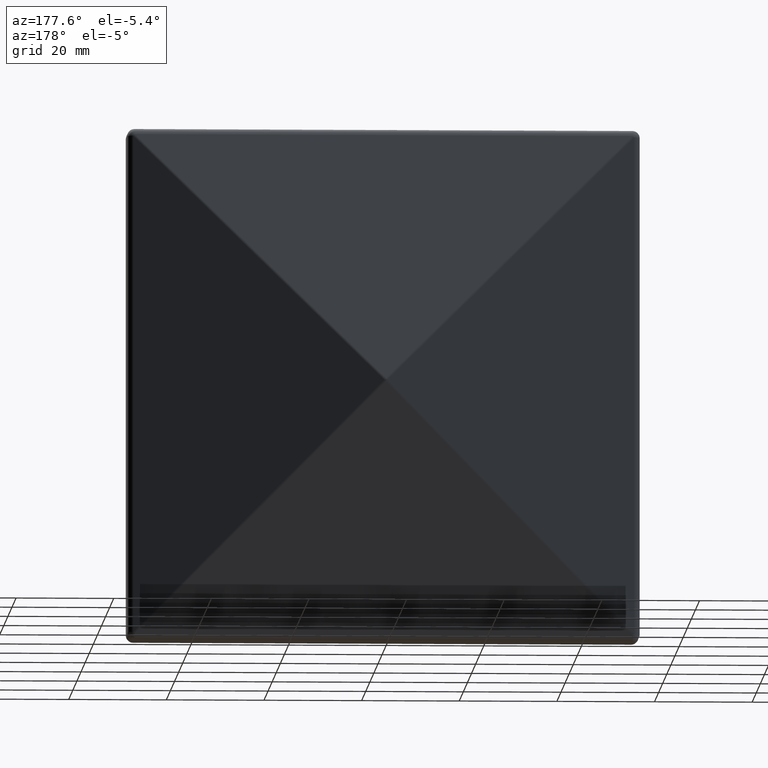
[diagram: clean part render]
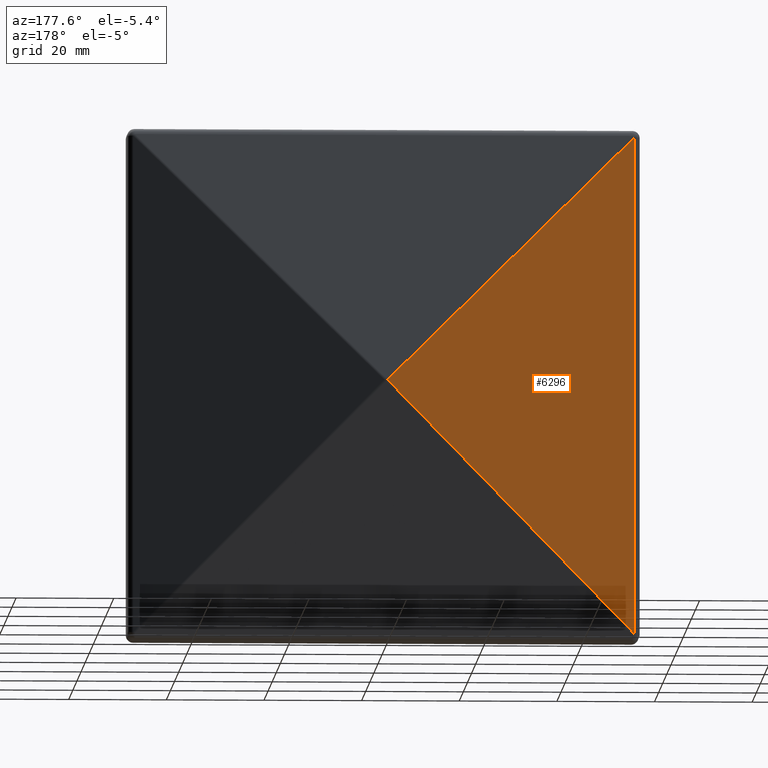
[diagram: same view with one face highlighted and labeled with its STEP entity id]
A machine part, auxiliary view. The second image highlights one B-rep face of the part: STEP entity #6296.
In plain terms, the highlighted planar face has unit normal (-0.2108, 0.9775, 0).
Its self-contained STEP definition (entity closure, byte-faithful):
#873 = ORIENTED_EDGE ( 'NONE', *, *, #8316, .T. ) ;
#1115 = VECTOR ( 'NONE', #1440, 1000.000000000000000 ) ;
#1440 = DIRECTION ( 'NONE',  ( -0.0000000000000000000, -0.0000000000000000000, 1.000000000000000000 ) ) ;
#1446 = VECTOR ( 'NONE', #1901, 1000.000000000000100 ) ;
#1490 = DIRECTION ( 'NONE',  ( 0.6990237684216006300, 0.1507698324046588300, -0.6990237684216006300 ) ) ;
#1528 = AXIS2_PLACEMENT_3D ( 'NONE', #5166, #10459, #1793 ) ;
#1793 = DIRECTION ( 'NONE',  ( -0.9775210440823286500, -0.2108378722530510900, 0.0000000000000000000 ) ) ;
#1901 = DIRECTION ( 'NONE',  ( -0.6990237684216006300, -0.1507698324046588000, -0.6990237684216005200 ) ) ;
#2464 = LINE ( 'NONE', #4793, #1115 ) ;
#2540 = LINE ( 'NONE', #8368, #8224 ) ;
#3452 = PLANE ( 'NONE',  #1528 ) ;
#3721 = LINE ( 'NONE', #7925, #1446 ) ;
#4264 = ORIENTED_EDGE ( 'NONE', *, *, #9827, .T. ) ;
#4298 = VERTEX_POINT ( 'NONE', #8830 ) ;
#4793 = CARTESIAN_POINT ( 'NONE',  ( -51.31625680837959200, 7.966281566123490700, -52.49999999999999300 ) ) ;
#5166 = CARTESIAN_POINT ( 'NONE',  ( -3.922979806175310700, 18.18836091954009100, -52.49999999999999300 ) ) ;
#5341 = EDGE_LOOP ( 'NONE', ( #4264, #873, #8995 ) ) ;
#5689 = EDGE_CURVE ( 'NONE', #7657, #9986, #2464, .T. ) ;
#6296 = ADVANCED_FACE ( 'NONE', ( #10289 ), #3452, .T. ) ;
#7657 = VERTEX_POINT ( 'NONE', #10735 ) ;
#7925 = CARTESIAN_POINT ( 'NONE',  ( -27.81390850854866100, 13.03541551314584300, -27.49765170016905500 ) ) ;
#8224 = VECTOR ( 'NONE', #1490, 1000.000000000000000 ) ;
#8316 = EDGE_CURVE ( 'NONE', #4298, #7657, #3721, .T. ) ;
#8368 = CARTESIAN_POINT ( 'NONE',  ( -0.4707907100506804100, 18.93295072458657900, 0.1545339016711007300 ) ) ;
#8830 = CARTESIAN_POINT ( 'NONE',  ( -0.3162568083795759300, 18.96628156612348400, 0.0000000000000000000 ) ) ;
#8995 = ORIENTED_EDGE ( 'NONE', *, *, #5689, .T. ) ;
#9619 = CARTESIAN_POINT ( 'NONE',  ( -51.31625680837959200, 7.966281566123490700, 51.00000000000001400 ) ) ;
#9827 = EDGE_CURVE ( 'NONE', #9986, #4298, #2540, .T. ) ;
#9986 = VERTEX_POINT ( 'NONE', #9619 ) ;
#10289 = FACE_OUTER_BOUND ( 'NONE', #5341, .T. ) ;
#10459 = DIRECTION ( 'NONE',  ( -0.2108378722530511200, 0.9775210440823287600, 0.0000000000000000000 ) ) ;
#10735 = CARTESIAN_POINT ( 'NONE',  ( -51.31625680837959200, 7.966281566123490700, -51.00000000000000000 ) ) ;